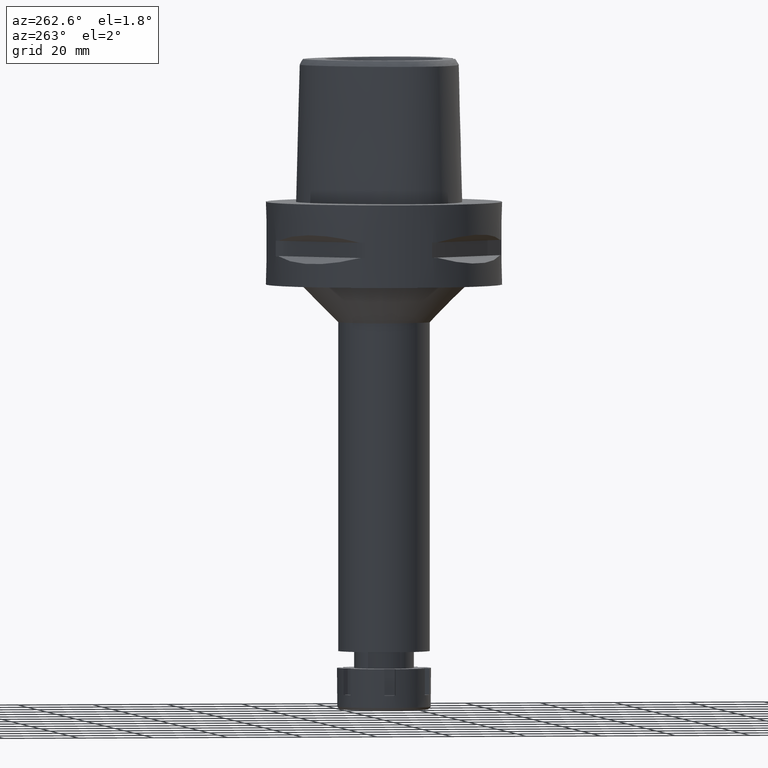
[diagram: clean part render]
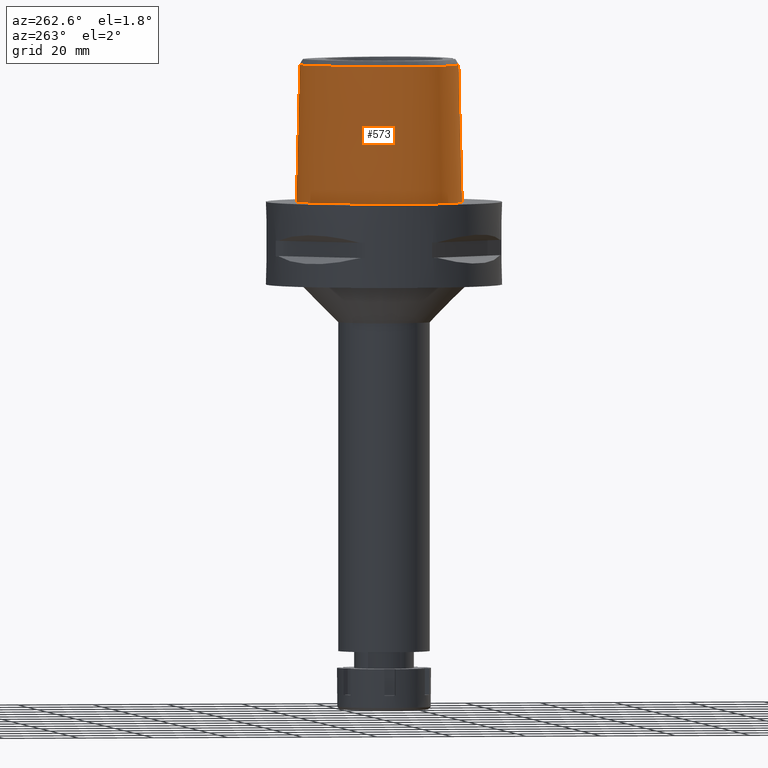
[diagram: same view with one face highlighted and labeled with its STEP entity id]
A machine part, auxiliary view. The second image highlights one B-rep face of the part: STEP entity #573.
In plain terms, the highlighted face is a freeform B-spline surface patch.
Its self-contained STEP definition (entity closure, byte-faithful):
#8 = CARTESIAN_POINT ( 'NONE',  ( -0.5047993661926269970, -20.38876923348000858, 11.45000000000000107 ) ) ;
#21 = CARTESIAN_POINT ( 'NONE',  ( 0.7234356453953000310, 23.47140593135999964, -0.7304378667426000282 ) ) ;
#27 = EDGE_CURVE ( 'NONE', #5125, #4345, #4020, .T. ) ;
#106 = CARTESIAN_POINT ( 'NONE',  ( -20.09084467977999822, -11.59945458355000092, 11.93048515679000054 ) ) ;
#128 = CARTESIAN_POINT ( 'NONE',  ( -3.671249123513567802, -19.60525173594972514, 34.94790829898666829 ) ) ;
#133 = CARTESIAN_POINT ( 'NONE',  ( -21.13154856346000088, -6.714587031163000042, 37.25233120387000696 ) ) ;
#159 = CARTESIAN_POINT ( 'NONE',  ( -4.987110641354000506, 22.24795274051000149, 11.93048515679000054 ) ) ;
#184 = CARTESIAN_POINT ( 'NONE',  ( -20.94844326293999970, -10.61175397189999892, -0.7304378667426000282 ) ) ;
#213 = CARTESIAN_POINT ( 'NONE',  ( -17.25769828425000085, 9.963736401376998231, 37.25233120387000696 ) ) ;
#244 = CARTESIAN_POINT ( 'NONE',  ( -20.09619618740880043, -10.23243843868059066, 36.52186244847992214 ) ) ;
#257 = CARTESIAN_POINT ( 'NONE',  ( -16.95889172186775085, -15.67838866670421361, 2.619346360361977932E-07 ) ) ;
#264 = CARTESIAN_POINT ( 'NONE',  ( -3.921269265871360155, -20.09311890564809033, 14.47775228273900261 ) ) ;
#291 = CARTESIAN_POINT ( 'NONE',  ( -2.467128207654215366, -20.12044499745017490, 18.71456023906640809 ) ) ;
#298 = CARTESIAN_POINT ( 'NONE',  ( -1.853278683591999876, -20.08023909589999789, 24.59140818032999931 ) ) ;
#303 = CARTESIAN_POINT ( 'NONE',  ( -21.07430010673133580, -0.4408303445192869874, 36.52186244847992214 ) ) ;
#310 = VECTOR ( 'NONE', #3848, 999.9999999999998863 ) ;
#320 = CARTESIAN_POINT ( 'NONE',  ( -3.520475118947736348, -20.16064927175107968, 13.49656734865833663 ) ) ;
#326 = CARTESIAN_POINT ( 'NONE',  ( -14.36818022375999959, -16.67825710941000139, 24.59140818032999931 ) ) ;
#329 = CARTESIAN_POINT ( 'NONE',  ( -4.467522189395712218, -19.48130287050408072, 36.52186244847992214 ) ) ;
#350 = CARTESIAN_POINT ( 'NONE',  ( -2.781497320433747866, -20.10345565782015242, 18.44409576488593316 ) ) ;
#368 = CARTESIAN_POINT ( 'NONE',  ( -0.8548392418397517956, 23.47499999345155075, 2.619351224693407064E-07 ) ) ;
#373 = CARTESIAN_POINT ( 'NONE',  ( -2.875757950341225389, -20.24102512592877545, 12.64823125461331266 ) ) ;
#391 = EDGE_CURVE ( 'NONE', #3148, #4595, #1599, .T. ) ;
#402 = CARTESIAN_POINT ( 'NONE',  ( -3.089131642920992515, -20.21685897408069010, 12.88004451868239286 ) ) ;
#430 = CARTESIAN_POINT ( 'NONE',  ( -3.215358272888209079, -20.20174660046934889, 13.03391498473856380 ) ) ;
#443 = CARTESIAN_POINT ( 'NONE',  ( 0.4696382016777999602, 23.16972797999000022, 11.93048515679000054 ) ) ;
#455 = CARTESIAN_POINT ( 'NONE',  ( -1.559921522259156923, -20.34641501698336796, 11.76246137009517767 ) ) ;
#530 = CARTESIAN_POINT ( 'NONE',  ( -19.40779763212000120, -12.64961923335000193, 11.93048515679000054 ) ) ;
#538 = VERTEX_POINT ( 'NONE', #4286 ) ;
#554 = CARTESIAN_POINT ( 'NONE',  ( -21.94536971692000193, -4.102220499650000463, 11.93048515679999966 ) ) ;
#573 = ADVANCED_FACE ( 'NONE', ( #4789 ), #2280, .T. ) ;
#584 = CARTESIAN_POINT ( 'NONE',  ( -16.77374378749999906, -15.44292467676000058, 11.93048515679000054 ) ) ;
#591 = CARTESIAN_POINT ( 'NONE',  ( -2.503154198992559198, -19.81241979315919011, 31.80000012753028571 ) ) ;
#603 = ORIENTED_EDGE ( 'NONE', *, *, #27, .T. ) ;
#613 = CARTESIAN_POINT ( 'NONE',  ( -20.46725037759000188, 4.555493625363999932, 11.93048515679999966 ) ) ;
#643 = CARTESIAN_POINT ( 'NONE',  ( -20.36546124918999823, -11.75800453441999949, -0.7304378667426000282 ) ) ;
#651 = VERTEX_POINT ( 'NONE', #4623 ) ;
#671 = CARTESIAN_POINT ( 'NONE',  ( -11.23887130413000079, -18.91049776456999965, -0.7304378667426000282 ) ) ;
#697 = CARTESIAN_POINT ( 'NONE',  ( -3.649474620161969884, -20.05281468735704564, 17.25706831816531306 ) ) ;
#698 = LINE ( 'NONE', #2423, #1025 ) ;
#704 = CARTESIAN_POINT ( 'NONE',  ( -14.52531259864000113, -16.95413742188999962, 11.93048515679000054 ) ) ;
#707 = CARTESIAN_POINT ( 'NONE',  ( -3.637738201363999835, -19.56971413236999879, 36.52186244848000030 ) ) ;
#724 = CARTESIAN_POINT ( 'NONE',  ( -3.736722311398999796, -19.67781602443999844, 31.80000000000000071 ) ) ;
#728 = CARTESIAN_POINT ( 'NONE',  ( -3.952964639633002708, -20.08622609015963079, 14.60890045225522016 ) ) ;
#734 = CARTESIAN_POINT ( 'NONE',  ( -1.886862292479999814, -20.71358860379999811, -0.7304378667426000282 ) ) ;
#743 = B_SPLINE_CURVE_WITH_KNOTS ( 'NONE', 3,
 ( #1061, #2784, #4498, #1981, #1538, #2010, #1957, #4643, #1227, #2919, #3291, #2896, #1115, #5392, #3320, #1623, #3704, #2504, #3735, #3789, #2473, #4166, #291, #3678, #5494, #350, #3265, #4974, #811, #3345, #2448, #2948, #2840, #5055, #2421, #697, #5474, #1649, #2529, #4562, #2043, #2069, #1193, #5003, #5448, #3371, #1594, #5412, #1564, #1146, #5082, #4670, #4241, #728, #264, #4140, #5032, #1171, #2870, #4590, #4615, #782, #4217, #753, #4190, #320, #3762, #2589, #5224, #4750, #4298, #3926, #430, #402, #833, #2124, #5527, #2153, #373, #3064, #1359, #2556, #3870, #3454, #1672, #5557, #1277, #4267, #2640, #3841, #455, #3813, #1754, #8, #1722 ),
 .UNSPECIFIED., .F., .F.,
 ( 4, 2, 2, 1, 1, 1, 2, 2, 2, 2, 1, 2, 2, 2, 1, 1, 1, 2, 2, 2, 2, 2, 1, 1, 2, 2, 2, 2, 1, 2, 2, 2, 2, 1, 1, 1, 2, 2, 2, 2, 1, 2, 2, 2, 1, 1, 1, 2, 2, 2, 2, 2, 1, 1, 2, 2, 4 ),
 ( 0.0000000000000000000, 0.06250000000000804912, 0.09375000000001200429, 0.1093750000000138778, 0.1171875000000148076, 0.1210937500000151545, 0.1230468750000154737, 0.1250000000000157929, 0.1562500000000184852, 0.1718750000000197897, 0.1796875000000204281, 0.1835937500000205391, 0.1875000000000206501, 0.2187500000000221767, 0.2343750000000228983, 0.2421875000000233147, 0.2460937500000237865, 0.2480468750000237310, 0.2500000000000236478, 0.3125000000000220379, 0.3437500000000212053, 0.3593750000000208722, 0.3671875000000206501, 0.3710937500000205391, 0.3730468750000200395, 0.3750000000000195954, 0.4375000000000068834, 0.4687500000000000555, 0.4843749999999967248, 0.4921874999999950040, 0.4999999999999932832, 0.5624999999999806821, 0.5937499999999746869, 0.6093749999999718003, 0.6171874999999703570, 0.6210937499999695799, 0.6230468749999692468, 0.6249999999999688027, 0.6562499999999672484, 0.6718749999999666933, 0.6796874999999662492, 0.6835937499999661382, 0.6874999999999659162, 0.7187499999999655831, 0.7343749999999654721, 0.7421874999999652500, 0.7460937499999651390, 0.7480468749999652500, 0.7499999999999652500, 0.8124999999999722444, 0.8437499999999760192, 0.8593749999999779066, 0.8671874999999789058, 0.8710937499999794609, 0.8730468749999797939, 0.8749999999999800160, 1.000000000000000000 ),
 .UNSPECIFIED. ) ;
#753 = CARTESIAN_POINT ( 'NONE',  ( -3.646271025386951692, -20.14180172674265634, 13.73229968810843360 ) ) ;
#761 = CARTESIAN_POINT ( 'NONE',  ( -6.232237555893999748, -19.68961163868999975, 24.59140818032999931 ) ) ;
#782 = CARTESIAN_POINT ( 'NONE',  ( -3.744859968352622026, -20.12555785049274704, 13.95773689203773493 ) ) ;
#804 = ORIENTED_EDGE ( 'NONE', *, *, #1432, .F. ) ;
#811 = CARTESIAN_POINT ( 'NONE',  ( -2.852856104024933170, -20.09931387729061569, 18.37467926461876999 ) ) ;
#833 = CARTESIAN_POINT ( 'NONE',  ( -3.024127618930171124, -20.22444760030266764, 12.80466032897661321 ) ) ;
#956 = CARTESIAN_POINT ( 'NONE',  ( -20.65947727138000189, -8.729764289773999764, 37.25233120387000696 ) ) ;
#959 = CARTESIAN_POINT ( 'NONE',  ( 2.041042029990999821E-08, -19.88004246002000031, 31.80000004972000127 ) ) ;
#985 = CARTESIAN_POINT ( 'NONE',  ( -20.65879042193000004, -10.48283616744000035, 11.93048515679000054 ) ) ;
#1008 = CARTESIAN_POINT ( 'NONE',  ( -14.42198652361999933, 15.65278600555999944, -0.7304378667426000282 ) ) ;
#1025 = VECTOR ( 'NONE', #3705, 1000.000000000000114 ) ;
#1037 = CARTESIAN_POINT ( 'NONE',  ( -2.373090257990999596, 22.37624318585000083, 37.25233120387000696 ) ) ;
#1061 = CARTESIAN_POINT ( 'NONE',  ( 0.0000000000000000000, -20.18628283968999781, 19.55000000000000071 ) ) ;
#1067 = CARTESIAN_POINT ( 'NONE',  ( -10.75753574117999989, 19.18839676111999992, -0.7304378667426000282 ) ) ;
#1091 = CARTESIAN_POINT ( 'NONE',  ( 0.6840430854466000854, -20.68668155454999891, -0.7304378667426000282 ) ) ;
#1094 = CARTESIAN_POINT ( 'NONE',  ( -21.14970188363666637, -6.717195958887917762, 36.52186244847992214 ) ) ;
#1112 = VERTEX_POINT ( 'NONE', #2704 ) ;
#1115 = CARTESIAN_POINT ( 'NONE',  ( -1.656252726927804675, -20.15609978928700130, 19.19765142506503608 ) ) ;
#1122 = CARTESIAN_POINT ( 'NONE',  ( 0.4520368072160999562, -20.37458452991999636, 11.93048515679000054 ) ) ;
#1146 = CARTESIAN_POINT ( 'NONE',  ( -4.049663826248573351, -20.05088590020230299, 15.56119206774690511 ) ) ;
#1152 = CARTESIAN_POINT ( 'NONE',  ( -1.836486879148000018, -19.76356434195000134, 37.25233120387000696 ) ) ;
#1155 = CARTESIAN_POINT ( 'NONE',  ( -1.721532760867000043E-11, 22.56201468012000078, 36.52186680743999858 ) ) ;
#1171 = CARTESIAN_POINT ( 'NONE',  ( -3.788010122577049277, -20.11815763408464974, 14.06624340820799546 ) ) ;
#1179 = CARTESIAN_POINT ( 'NONE',  ( -10.15538788053223129, 18.47129535094509123, 36.52186244847992214 ) ) ;
#1186 = CARTESIAN_POINT ( 'NONE',  ( -11.23259756502196005, -18.89324218131637068, 2.619346360361977932E-07 ) ) ;
#1193 = CARTESIAN_POINT ( 'NONE',  ( -3.848403410399270808, -20.04310851184510867, 16.79149714040345032 ) ) ;
#1221 = CARTESIAN_POINT ( 'NONE',  ( -7.571159431033696485, 21.31457030682647869, 2.619346360361977932E-07 ) ) ;
#1227 = CARTESIAN_POINT ( 'NONE',  ( -1.492522727688411210, -20.16161937968068685, 19.26502569008748011 ) ) ;
#1248 = CARTESIAN_POINT ( 'NONE',  ( -2.113823672675716914, -20.67499999345193373, 2.619346644252395981E-07 ) ) ;
#1269 = EDGE_CURVE ( 'NONE', #2715, #4595, #4556, .T. ) ;
#1277 = CARTESIAN_POINT ( 'NONE',  ( -1.678454493258324742, -20.33967188086215927, 11.81405957882952684 ) ) ;
#1359 = CARTESIAN_POINT ( 'NONE',  ( -2.647727988115372355, -20.26593689667616616, 12.42012271609376661 ) ) ;
#1376 = CARTESIAN_POINT ( 'NONE',  ( -7.259695359101000278, 20.78233551251999955, 24.59140818032999931 ) ) ;
#1403 = CARTESIAN_POINT ( 'NONE',  ( -17.53318565192000023, 10.12278922574999918, 24.59140818032999931 ) ) ;
#1430 = CARTESIAN_POINT ( 'NONE',  ( -17.80867301958000226, 10.28184205011999985, 11.93048515679000054 ) ) ;
#1432 = EDGE_CURVE ( 'NONE', #1112, #4345, #698, .T. ) ;
#1455 = CARTESIAN_POINT ( 'NONE',  ( -0.5821289162259000172, 22.88453074934999876, 24.59140818032999931 ) ) ;
#1470 = ORIENTED_EDGE ( 'NONE', *, *, #2760, .T. ) ;
#1489 = CARTESIAN_POINT ( 'NONE',  ( -21.26836735520999966, -8.910752227607000364, 11.93048515679000054 ) ) ;
#1538 = CARTESIAN_POINT ( 'NONE',  ( -1.025211814383784503, -20.17465818941732536, 19.42048404905371228 ) ) ;
#1564 = CARTESIAN_POINT ( 'NONE',  ( -4.048193638326265997, -20.04945813672258126, 15.62509932612173635 ) ) ;
#1585 = CARTESIAN_POINT ( 'NONE',  ( 4.563147168621999314E-11, 23.47499999999000053, 5.514107688971999147E-14 ) ) ;
#1594 = CARTESIAN_POINT ( 'NONE',  ( -4.038031914720692228, -20.04584209172335818, 15.81781984752944226 ) ) ;
#1599 = B_SPLINE_CURVE_WITH_KNOTS ( 'NONE', 3,
 ( #4458, #3253, #591, #1940 ),
 .UNSPECIFIED., .F., .F.,
 ( 4, 4 ),
 ( 0.0000000000000000000, 1.000000000000000000 ),
 .UNSPECIFIED. ) ;
#1605 = CARTESIAN_POINT ( 'NONE',  ( -7.300578999877068931, -19.07170748891847367, 36.52186244847992924 ) ) ;
#1623 = CARTESIAN_POINT ( 'NONE',  ( -2.004675599387941265, -20.14220382833399015, 19.01976680093504157 ) ) ;
#1644 = CARTESIAN_POINT ( 'NONE',  ( -10.74572890635932865, 19.17433593245471002, 2.619346360361977932E-07 ) ) ;
#1649 = CARTESIAN_POINT ( 'NONE',  ( -3.704467467891572774, -20.04996865237282222, 17.13733399074459030 ) ) ;
#1660 = CARTESIAN_POINT ( 'NONE',  ( -17.27359245833298829, 9.972912913898634102, 36.52186244847992214 ) ) ;
#1672 = CARTESIAN_POINT ( 'NONE',  ( -1.812541018728651698, -20.33144879143423367, 11.87771303033797388 ) ) ;
#1709 = CARTESIAN_POINT ( 'NONE',  ( 0.4823619559272999680, 23.48603818681999655, -0.7304378667426000282 ) ) ;
#1722 = CARTESIAN_POINT ( 'NONE',  ( -9.433993878921999819E-13, -20.38876923348000147, 11.44999999999999929 ) ) ;
#1749 = B_SPLINE_CURVE_WITH_KNOTS ( 'NONE', 3,
 ( #959, #3583, #5295, #2687 ),
 .UNSPECIFIED., .F., .F.,
 ( 4, 4 ),
 ( 0.0000000000000000000, 1.000000000000000000 ),
 .UNSPECIFIED. ) ;
#1754 = CARTESIAN_POINT ( 'NONE',  ( -1.035503055409048745, -20.37488775911208094, 11.54570873352037097 ) ) ;
#1822 = CARTESIAN_POINT ( 'NONE',  ( -2.568271206741000068, 23.31126238851000210, -0.7304378667426000282 ) ) ;
#1841 = CARTESIAN_POINT ( 'NONE',  ( -7.554102645100000769E-12, -20.67499999999999716, 5.806466418789999109E-14 ) ) ;
#1847 = CARTESIAN_POINT ( 'NONE',  ( -3.736722311398999796, -19.67781602443999844, 31.80000000000000071 ) ) ;
#1855 = CARTESIAN_POINT ( 'NONE',  ( -18.12052891677999966, -13.74516015676000080, 24.59140818032999931 ) ) ;
#1879 = CARTESIAN_POINT ( 'NONE',  ( -7.099337617387999622, 20.50831363529999862, 37.25233120387000696 ) ) ;
#1882 = B_SPLINE_CURVE_WITH_KNOTS ( 'NONE', 3,
 ( #707, #329, #1605, #4174, #2053, #2822, #4149, #2432, #2403, #244, #4117, #1094, #1965, #303, #3302, #1660, #3745, #1179, #4655, #2515, #4572, #5013, #1155 ),
 .UNSPECIFIED., .F., .F.,
 ( 4, 1, 1, 1, 1, 1, 1, 1, 1, 1, 1, 1, 1, 1, 1, 1, 1, 1, 1, 1, 4 ),
 ( 0.0000000000000000000, 0.03580973941723343545, 0.1234633994701930387, 0.1672902294965150638, 0.2111170595230475455, 0.2549438895495799162, 0.2768573045626883666, 0.2987707195759020662, 0.3206841345892208484, 0.3425975496024343814, 0.3864243796288616695, 0.4302512096552889020, 0.4740780396817161901, 0.5617316997346757379, 0.6493853597876353412, 0.7370390198404899174, 0.8246926798933443825, 0.8685195099198768087, 0.9123463399463145329, 0.9561731699727629152, 1.000000000000000000 ),
 .UNSPECIFIED. ) ;
#1883 = CARTESIAN_POINT ( 'NONE',  ( -3.637738201363999835, -19.56971413236999879, 36.52186244848000030 ) ) ;
#1901 = CARTESIAN_POINT ( 'NONE',  ( -21.99640702057999775, -0.2778990154077000119, -0.7304378667426000282 ) ) ;
#1918 = ORIENTED_EDGE ( 'NONE', *, *, #3458, .F. ) ;
#1940 = CARTESIAN_POINT ( 'NONE',  ( -3.736722311398999796, -19.67781602443999844, 31.80000000000000071 ) ) ;
#1957 = CARTESIAN_POINT ( 'NONE',  ( -1.320565687274587896, -20.16697761691573731, 19.32976498246028285 ) ) ;
#1965 = CARTESIAN_POINT ( 'NONE',  ( -21.32871527670295819, -4.105831244394031465, 36.52186244847993635 ) ) ;
#1981 = CARTESIAN_POINT ( 'NONE',  ( -0.8941136475783435511, -20.17742596329177474, 19.45229334933507204 ) ) ;
#2002 = CARTESIAN_POINT ( 'NONE',  ( -14.40795638455321814, 15.64093749575016012, 2.619351909850797799E-07 ) ) ;
#2010 = CARTESIAN_POINT ( 'NONE',  ( -1.222079501497006504, -20.16967619644332643, 19.36182732690497943 ) ) ;
#2019 = CARTESIAN_POINT ( 'NONE',  ( -16.57726026099999928, -15.19304451867999894, 24.59140818032999931 ) ) ;
#2043 = CARTESIAN_POINT ( 'NONE',  ( -3.738021026999632568, -20.04832921641927967, 17.05876513949563389 ) ) ;
#2050 = CARTESIAN_POINT ( 'NONE',  ( -14.21104784888999895, -16.40237679692999961, 37.25233120387000696 ) ) ;
#2053 = CARTESIAN_POINT ( 'NONE',  ( -14.22011356156272299, -16.41829364186454043, 36.52186244847992214 ) ) ;
#2064 = CARTESIAN_POINT ( 'NONE',  ( -20.74942740259727714, 4.657187497767338868, 2.619351909850797799E-07 ) ) ;
#2069 = CARTESIAN_POINT ( 'NONE',  ( -3.740129524201637690, -20.04822853724978415, 17.05370687140991137 ) ) ;
#2087 = CARTESIAN_POINT ( 'NONE',  ( -18.06826687956963795, 10.43171874671655885, 2.619346360361977932E-07 ) ) ;
#2108 = CARTESIAN_POINT ( 'NONE',  ( 0.6658292787358000009, 22.52368252663000092, 37.25233120387000696 ) ) ;
#2124 = CARTESIAN_POINT ( 'NONE',  ( -2.945118222697316934, -20.23335776654016271, 12.71958560101062652 ) ) ;
#2132 = LINE ( 'NONE', #3462, #310 ) ;
#2140 = CARTESIAN_POINT ( 'NONE',  ( 0.7042335231754000002, 23.15549812978000332, 11.93048515679000054 ) ) ;
#2153 = CARTESIAN_POINT ( 'NONE',  ( -2.887412005234944345, -20.23974548682597074, 12.66003157092543319 ) ) ;
#2167 = CARTESIAN_POINT ( 'NONE',  ( -0.6149727129407999149, 23.51889465396999768, -0.7304378667426000282 ) ) ;
#2252 = CARTESIAN_POINT ( 'NONE',  ( -21.05621879942999897, -0.4440252142100999944, 37.25233120387000696 ) ) ;
#2277 = CARTESIAN_POINT ( 'NONE',  ( -21.62788386376000105, -4.104079499278999954, 24.59140818032999931 ) ) ;
#2280 = B_SPLINE_SURFACE_WITH_KNOTS ( 'NONE', 3, 3, ( 
 ( #21, #2140, #3049, #2108 ),
 ( #1709, #443, #3831, #3439 ),
 ( #2167, #3413, #1455, #4423 ),
 ( #1822, #2762, #4079, #1037 ),
 ( #4505, #159, #2311, #4023 ),
 ( #4894, #3160, #1376, #1879 ),
 ( #1067, #3185, #3602, #5237 ),
 ( #1008, #5291, #4477, #4841 ),
 ( #4924, #1430, #1403, #213 ),
 ( #5314, #613, #3629, #2340 ),
 ( #1901, #5342, #3526, #2252 ),
 ( #3133, #554, #2277, #2793 ),
 ( #3991, #3105, #4051, #133 ),
 ( #4817, #1489, #3218, #956 ),
 ( #184, #985, #2683, #2730 ),
 ( #643, #106, #3966, #2364 ),
 ( #4397, #530, #3552, #5263 ),
 ( #2707, #4867, #1855, #4448 ),
 ( #3579, #584, #2019, #2902 ),
 ( #4171, #704, #326, #2050 ),
 ( #671, #5479, #4224, #3770 ),
 ( #4198, #4114, #761, #4596 ),
 ( #734, #3711, #298, #1152 ),
 ( #5371, #1122, #3269, #4954 ),
 ( #1091, #3656, #2819, #2878 ) ),
 .UNSPECIFIED., .F., .F., .F.,
 ( 4, 1, 1, 1, 1, 1, 1, 1, 1, 1, 1, 1, 1, 1, 1, 1, 1, 1, 1, 1, 1, 1, 4 ),
 ( 4, 4 ),
 ( -0.01173777939045999967, 0.0000000000000000000, 0.04166666666736999758, 0.08333333333399001175, 0.1250000000005999923, 0.1666666666673000119, 0.2500000000004999889, 0.3333333333337000215, 0.4166666666670000296, 0.5000000000002999823, 0.5416666666668999985, 0.5833333333335000148, 0.6250000000001000311, 0.6458333333333999837, 0.6666666666667999674, 0.6875000000001000311, 0.7083333333333000637, 0.7500000000000000000, 0.7916666666667000474, 0.8333333333332000326, 0.9166666666664999852, 1.000000000000000000, 1.008985696609000060 ),
 ( -3.533580594794000156E-09, 1.000000180213000078 ),
 .UNSPECIFIED. ) ;
#2294 = EDGE_LOOP ( 'NONE', ( #804, #1918, #5341, #4942, #3486, #1470, #3111, #603 ) ) ;
#2311 = CARTESIAN_POINT ( 'NONE',  ( -4.868968364858000442, 21.95285523424999852, 24.59140818032999931 ) ) ;
#2340 = CARTESIAN_POINT ( 'NONE',  ( -19.86834402563999902, 4.339653564911000849, 37.25233120387000696 ) ) ;
#2364 = CARTESIAN_POINT ( 'NONE',  ( -19.54161154095999819, -11.28235468179999934, 37.25233120387000696 ) ) ;
#2403 = CARTESIAN_POINT ( 'NONE',  ( -19.55745547455737210, -11.29150218116193116, 36.52186244847992214 ) ) ;
#2421 = CARTESIAN_POINT ( 'NONE',  ( -3.623054736483445115, -20.05423874947321750, 17.31100359226983088 ) ) ;
#2423 = CARTESIAN_POINT ( 'NONE',  ( -9.433993878921999819E-13, -20.38876923348000147, 11.44999999999999929 ) ) ;
#2432 = CARTESIAN_POINT ( 'NONE',  ( -18.90964971338141609, -12.28759719904615011, 36.52186244847992214 ) ) ;
#2448 = CARTESIAN_POINT ( 'NONE',  ( -3.081149392581320257, -20.08583124627751104, 18.14629112889923235 ) ) ;
#2473 = CARTESIAN_POINT ( 'NONE',  ( -2.236225399043144879, -20.13170464962382766, 18.87669531694537639 ) ) ;
#2504 = CARTESIAN_POINT ( 'NONE',  ( -2.141634863661368016, -20.13611892945429460, 18.93776449056523248 ) ) ;
#2515 = CARTESIAN_POINT ( 'NONE',  ( -4.757642277158861788, 21.67478330407438847, 36.52186244847992214 ) ) ;
#2525 = CARTESIAN_POINT ( 'NONE',  ( -5.098437014838742343, 22.52602538452507019, 2.619346360361977932E-07 ) ) ;
#2529 = CARTESIAN_POINT ( 'NONE',  ( -3.724287987559556701, -20.04899117660404073, 17.09139312267754107 ) ) ;
#2556 = CARTESIAN_POINT ( 'NONE',  ( -2.421503357404191092, -20.28648737493365317, 12.24279215502128615 ) ) ;
#2589 = CARTESIAN_POINT ( 'NONE',  ( -3.438474044888219616, -20.17226853620289262, 13.35950353148342806 ) ) ;
#2619 = EDGE_CURVE ( 'NONE', #3148, #538, #1749, .T. ) ;
#2640 = CARTESIAN_POINT ( 'NONE',  ( -1.592612062468855560, -20.34460894491094862, 11.77623291199367905 ) ) ;
#2683 = CARTESIAN_POINT ( 'NONE',  ( -20.36913758092999771, -10.35391836298000001, 24.59140818032999931 ) ) ;
#2687 = CARTESIAN_POINT ( 'NONE',  ( 0.0000000000000000000, -20.18628283968999781, 19.55000000000000071 ) ) ;
#2704 = CARTESIAN_POINT ( 'NONE',  ( -9.433993878921999819E-13, -20.38876923348000147, 11.44999999999999929 ) ) ;
#2707 = CARTESIAN_POINT ( 'NONE',  ( -18.58171406928000025, -14.18198046874000084, -0.7304378667426000282 ) ) ;
#2715 = VERTEX_POINT ( 'NONE', #1883 ) ;
#2730 = CARTESIAN_POINT ( 'NONE',  ( -20.07948473991999805, -10.22500055852000145, 37.25233120387000696 ) ) ;
#2760 = EDGE_CURVE ( 'NONE', #2715, #651, #1882, .T. ) ;
#2762 = CARTESIAN_POINT ( 'NONE',  ( -2.503210890491000207, 22.99958932096000197, 11.93048515679000054 ) ) ;
#2784 = CARTESIAN_POINT ( 'NONE',  ( -0.2473412322776362970, -20.18628283969000137, 19.54999999999999716 ) ) ;
#2793 = CARTESIAN_POINT ( 'NONE',  ( -21.31039801061000105, -4.105938498908000334, 37.25233120387000696 ) ) ;
#2819 = CARTESIAN_POINT ( 'NONE',  ( 0.6718639802293999708, -20.05378874207000095, 24.59140818032999931 ) ) ;
#2822 = CARTESIAN_POINT ( 'NONE',  ( -16.39211280191553044, -14.95758113319470084, 36.52186244847992214 ) ) ;
#2840 = CARTESIAN_POINT ( 'NONE',  ( -3.474550157063431843, -20.06258684786148194, 17.58509941784211605 ) ) ;
#2863 = CARTESIAN_POINT ( 'NONE',  ( 4.563147168621999314E-11, 23.47499999999000053, 5.514107688971999147E-14 ) ) ;
#2870 = CARTESIAN_POINT ( 'NONE',  ( -3.765489374949922308, -20.12204791086962885, 14.00864527312732299 ) ) ;
#2878 = CARTESIAN_POINT ( 'NONE',  ( 0.6657744276207999690, -19.73734233584000108, 37.25233120387000696 ) ) ;
#2889 = CARTESIAN_POINT ( 'NONE',  ( -19.64947365333437190, -12.82525390239508845, 2.619346360361977932E-07 ) ) ;
#2896 = CARTESIAN_POINT ( 'NONE',  ( -1.543048130379650384, -20.15993798682084304, 19.24453660913642139 ) ) ;
#2902 = CARTESIAN_POINT ( 'NONE',  ( -16.38077673448999860, -14.94316436059999909, 37.25233120387000696 ) ) ;
#2919 = CARTESIAN_POINT ( 'NONE',  ( -1.517038990532515674, -20.16080850842839212, 19.25515252244225550 ) ) ;
#2941 = CARTESIAN_POINT ( 'NONE',  ( -21.97832647138169904, -0.2810937511456854665, 2.619346360361977932E-07 ) ) ;
#2948 = CARTESIAN_POINT ( 'NONE',  ( -3.258446753586563105, -20.07522384658320291, 17.91983021284166711 ) ) ;
#3049 = CARTESIAN_POINT ( 'NONE',  ( 0.6850314009556000006, 22.83959032821000079, 24.59140818032999931 ) ) ;
#3064 = CARTESIAN_POINT ( 'NONE',  ( -2.870809693610169244, -20.24156730632855528, 12.64324605246983957 ) ) ;
#3096 = CARTESIAN_POINT ( 'NONE',  ( -3.704239276368590961, -19.64128040965313460, 33.37395414949332917 ) ) ;
#3105 = CARTESIAN_POINT ( 'NONE',  ( -21.76083705166000115, -6.805026034490000875, 11.93048515679000054 ) ) ;
#3108 = EDGE_CURVE ( 'NONE', #651, #5125, #2132, .T. ) ;
#3111 = ORIENTED_EDGE ( 'NONE', *, *, #3108, .T. ) ;
#3133 = CARTESIAN_POINT ( 'NONE',  ( -22.26285557008000282, -4.100361500021000083, -0.7304378667426000282 ) ) ;
#3148 = VERTEX_POINT ( 'NONE', #5141 ) ;
#3160 = CARTESIAN_POINT ( 'NONE',  ( -7.420053100814000047, 21.05635738974000049, 11.93048515679000054 ) ) ;
#3185 = CARTESIAN_POINT ( 'NONE',  ( -10.55288401100999884, 18.94467581832000036, 11.93048515679000054 ) ) ;
#3218 = CARTESIAN_POINT ( 'NONE',  ( -20.96392231329000211, -8.820258258690001796, 24.59140818032999931 ) ) ;
#3253 = CARTESIAN_POINT ( 'NONE',  ( -1.251533273949709590, -19.88005341379600210, 31.80000012753018979 ) ) ;
#3265 = CARTESIAN_POINT ( 'NONE',  ( -2.823299992936002756, -20.10104229143709276, 18.40378355436402202 ) ) ;
#3269 = CARTESIAN_POINT ( 'NONE',  ( 0.4479792473616999726, -20.05810137037000018, 24.59140818032999931 ) ) ;
#3291 = CARTESIAN_POINT ( 'NONE',  ( -1.533377486154582581, -20.16026360294686626, 19.24851053760752961 ) ) ;
#3302 = CARTESIAN_POINT ( 'NONE',  ( -19.88562090097909518, 4.345879983791755663, 36.52186244847993635 ) ) ;
#3312 = CARTESIAN_POINT ( 'NONE',  ( -21.55524825379765730, -8.996025388752761032, 2.619346360361977932E-07 ) ) ;
#3320 = CARTESIAN_POINT ( 'NONE',  ( -1.944872162930868287, -20.14473830020673617, 19.05307826098890445 ) ) ;
#3345 = CARTESIAN_POINT ( 'NONE',  ( -2.857836109605272679, -20.09902107152586481, 18.36973246307367447 ) ) ;
#3371 = CARTESIAN_POINT ( 'NONE',  ( -4.019649019913691390, -20.04316019033999652, 16.01163126942446269 ) ) ;
#3394 = CARTESIAN_POINT ( 'NONE',  ( -22.24453907198324742, -4.100468750038055887, 2.619351909850797799E-07 ) ) ;
#3413 = CARTESIAN_POINT ( 'NONE',  ( -0.5985508145832999505, 23.20171270165999644, 11.93048515679999966 ) ) ;
#3439 = CARTESIAN_POINT ( 'NONE',  ( 0.4441906931785999935, 22.53710756634000134, 37.25233120387000696 ) ) ;
#3454 = CARTESIAN_POINT ( 'NONE',  ( -1.975954942208675513, -20.32065689222412175, 11.96260358356744469 ) ) ;
#3458 = EDGE_CURVE ( 'NONE', #538, #1112, #743, .T. ) ;
#3462 = CARTESIAN_POINT ( 'NONE',  ( -1.721532760867000043E-11, 22.56201468012000078, 36.52186680743999858 ) ) ;
#3486 = ORIENTED_EDGE ( 'NONE', *, *, #1269, .F. ) ;
#3526 = CARTESIAN_POINT ( 'NONE',  ( -21.36961487314000152, -0.3886498146093000372, 24.59140818032999931 ) ) ;
#3552 = CARTESIAN_POINT ( 'NONE',  ( -19.15132511418999783, -12.46323141721999939, 24.59140818032999931 ) ) ;
#3579 = CARTESIAN_POINT ( 'NONE',  ( -16.97022731399999884, -15.69280483484000044, -0.7304378667426000282 ) ) ;
#3583 = CARTESIAN_POINT ( 'NONE',  ( 6.820942348331112807E-09, -19.98212988583188476, 27.71666688228308217 ) ) ;
#3602 = CARTESIAN_POINT ( 'NONE',  ( -10.34823228082999869, 18.70095487552000080, 24.59140818032999931 ) ) ;
#3629 = CARTESIAN_POINT ( 'NONE',  ( -20.16779720162000089, 4.447573595138000435, 24.59140818032999931 ) ) ;
#3656 = CARTESIAN_POINT ( 'NONE',  ( 0.6779535328379999726, -20.37023514831000170, 11.93048515679000054 ) ) ;
#3678 = CARTESIAN_POINT ( 'NONE',  ( -2.621021505587179057, -20.11233874864636206, 18.58822781674976454 ) ) ;
#3704 = CARTESIAN_POINT ( 'NONE',  ( -2.095753548412726097, -20.13818364214429835, 18.96577014705994912 ) ) ;
#3705 = DIRECTION ( 'NONE',  ( -5.771736818903829525E-13, -0.02499051295389925070, -0.9996876883618708298 ) ) ;
#3711 = CARTESIAN_POINT ( 'NONE',  ( -1.870070488035999956, -20.39691384984999800, 11.93048515679000054 ) ) ;
#3735 = CARTESIAN_POINT ( 'NONE',  ( -2.187955111050584378, -20.13397228737159139, 18.90818030783799841 ) ) ;
#3745 = CARTESIAN_POINT ( 'NONE',  ( -13.70645028110978814, 15.04851272300822806, 36.52186244847993635 ) ) ;
#3762 = CARTESIAN_POINT ( 'NONE',  ( -3.466483550187511753, -20.16833646136333869, 13.40542637771374501 ) ) ;
#3770 = CARTESIAN_POINT ( 'NONE',  ( -10.91263698749000000, -18.01320775713999822, 37.25233120387000696 ) ) ;
#3789 = CARTESIAN_POINT ( 'NONE',  ( -2.218923952808330657, -20.13252298611807234, 18.88809933006110953 ) ) ;
#3807 = CARTESIAN_POINT ( 'NONE',  ( -20.34961797988879795, -11.74885741858964217, 2.619346360361977932E-07 ) ) ;
#3813 = CARTESIAN_POINT ( 'NONE',  ( -1.554881956804919030, -20.34669101430225524, 11.76035872671677573 ) ) ;
#3831 = CARTESIAN_POINT ( 'NONE',  ( 0.4569144474282000323, 22.85341777317000123, 24.59140818032999931 ) ) ;
#3841 = CARTESIAN_POINT ( 'NONE',  ( -1.572984596533692381, -20.34569619827900055, 11.76794029727472690 ) ) ;
#3848 = DIRECTION ( 'NONE',  ( 1.720261777398959079E-12, 0.02499051290962944413, -0.9996876883629776112 ) ) ;
#3870 = CARTESIAN_POINT ( 'NONE',  ( -2.086814383365040104, -20.31269213283688657, 12.02647857452866198 ) ) ;
#3926 = CARTESIAN_POINT ( 'NONE',  ( -3.294464282139351052, -20.19175818983858051, 13.14063372506664606 ) ) ;
#3966 = CARTESIAN_POINT ( 'NONE',  ( -19.81622811036999821, -11.44090463266999969, 24.59140818032999931 ) ) ;
#3985 = CARTESIAN_POINT ( 'NONE',  ( -3.637738201363999835, -19.56971413236999879, 36.52186244848000030 ) ) ;
#3991 = CARTESIAN_POINT ( 'NONE',  ( -22.07548129577000040, -6.850245536153000359, -0.7304378667426000282 ) ) ;
#4020 = B_SPLINE_CURVE_WITH_KNOTS ( 'NONE', 3,
 ( #2863, #368, #5466, #2525, #1221, #1644, #2002, #2087, #2064, #2941, #3394, #5100, #3312, #4160, #3807, #2889, #5439, #257, #5519, #1186, #4666, #1248, #4182 ),
 .UNSPECIFIED., .F., .F.,
 ( 4, 1, 1, 1, 1, 1, 1, 1, 1, 1, 1, 1, 1, 1, 1, 1, 1, 1, 1, 1, 4 ),
 ( 0.0000000000000000000, 0.04166666666736999758, 0.08333333333399001175, 0.1250000000005999923, 0.1666666666673000119, 0.2500000000004999889, 0.3333333333337000215, 0.4166666666670000296, 0.5000000000002999823, 0.5416666666668999985, 0.5833333333335000148, 0.6250000000001000311, 0.6458333333333999837, 0.6666666666667999674, 0.6875000000001000311, 0.7083333333333000637, 0.7500000000000000000, 0.7916666666667000474, 0.8333333333332000326, 0.9166666666664999852, 1.000000000000000000 ),
 .UNSPECIFIED. ) ;
#4023 = CARTESIAN_POINT ( 'NONE',  ( -4.750826088362000377, 21.65775772799999999, 37.25233120387000696 ) ) ;
#4051 = CARTESIAN_POINT ( 'NONE',  ( -21.44619280755999924, -6.759806532825999525, 24.59140818032999931 ) ) ;
#4079 = CARTESIAN_POINT ( 'NONE',  ( -2.438150574240999902, 22.68791625340000095, 24.59140818032999931 ) ) ;
#4114 = CARTESIAN_POINT ( 'NONE',  ( -6.288476566710999194, -20.00290564649999681, 11.93048515679999966 ) ) ;
#4117 = CARTESIAN_POINT ( 'NONE',  ( -20.67704215116288324, -8.734985316449661141, 36.52186244847992214 ) ) ;
#4140 = CARTESIAN_POINT ( 'NONE',  ( -3.862607746689351362, -20.10460055501470933, 14.28038032241867761 ) ) ;
#4149 = CARTESIAN_POINT ( 'NONE',  ( -17.90324032096351914, -13.53935111955362913, 36.52186244847992214 ) ) ;
#4160 = CARTESIAN_POINT ( 'NONE',  ( -20.93173251612003938, -10.60431640359096761, 2.619346360361977932E-07 ) ) ;
#4166 = CARTESIAN_POINT ( 'NONE',  ( -2.360389010909422325, -20.12578017861218171, 18.79373387522312555 ) ) ;
#4171 = CARTESIAN_POINT ( 'NONE',  ( -14.68244497352000089, -17.23001773437000139, -0.7304378667426000282 ) ) ;
#4174 = CARTESIAN_POINT ( 'NONE',  ( -10.91891098965112761, -18.03046406390704348, 36.52186244847992214 ) ) ;
#4182 = CARTESIAN_POINT ( 'NONE',  ( -7.554102645100000769E-12, -20.67499999999999716, 5.806466418789999109E-14 ) ) ;
#4190 = CARTESIAN_POINT ( 'NONE',  ( -3.553766164807453887, -20.15576042543209923, 13.55638603583962443 ) ) ;
#4198 = CARTESIAN_POINT ( 'NONE',  ( -6.344715577528000416, -20.31619965430000008, -0.7304378667426000282 ) ) ;
#4217 = CARTESIAN_POINT ( 'NONE',  ( -3.698122373793030437, -20.13343971463974214, 13.84482020408101377 ) ) ;
#4224 = CARTESIAN_POINT ( 'NONE',  ( -11.02138175969999878, -18.31230442628000077, 24.59140818032999931 ) ) ;
#4241 = CARTESIAN_POINT ( 'NONE',  ( -4.027530768677415551, -20.06783249596207597, 14.99855479653706958 ) ) ;
#4267 = CARTESIAN_POINT ( 'NONE',  ( -1.638635025844401127, -20.34200884320507186, 11.79610711465622508 ) ) ;
#4286 = CARTESIAN_POINT ( 'NONE',  ( 0.0000000000000000000, -20.18628283968999781, 19.55000000000000071 ) ) ;
#4298 = CARTESIAN_POINT ( 'NONE',  ( -3.377353639916971240, -20.18061854612786732, 13.26476903757087200 ) ) ;
#4345 = VERTEX_POINT ( 'NONE', #1841 ) ;
#4397 = CARTESIAN_POINT ( 'NONE',  ( -19.66427015006000190, -12.83600704949000004, -0.7304378667426000282 ) ) ;
#4423 = CARTESIAN_POINT ( 'NONE',  ( -0.5657070178683999417, 22.56734879703000018, 37.25233120387000696 ) ) ;
#4448 = CARTESIAN_POINT ( 'NONE',  ( -17.88993634052999937, -13.52675000077999989, 37.25233120387000696 ) ) ;
#4458 = CARTESIAN_POINT ( 'NONE',  ( 2.041042029990999821E-08, -19.88004246002000031, 31.80000004972000127 ) ) ;
#4477 = CARTESIAN_POINT ( 'NONE',  ( -13.93560854372000080, 15.24203781277999958, 24.59140818032999931 ) ) ;
#4498 = CARTESIAN_POINT ( 'NONE',  ( -0.5036866637238501809, -20.18406862059044471, 19.52728785669996725 ) ) ;
#4505 = CARTESIAN_POINT ( 'NONE',  ( -5.105252917850000571, 22.54305024676000002, -0.7304378667426000282 ) ) ;
#4556 = B_SPLINE_CURVE_WITH_KNOTS ( 'NONE', 3,
 ( #3985, #128, #3096, #1847 ),
 .UNSPECIFIED., .F., .F.,
 ( 4, 4 ),
 ( 0.0000000000000000000, 1.000000000000000000 ),
 .UNSPECIFIED. ) ;
#4562 = CARTESIAN_POINT ( 'NONE',  ( -3.732557508995415052, -20.04859144260191783, 17.07180291399404837 ) ) ;
#4572 = CARTESIAN_POINT ( 'NONE',  ( -2.376843896516486421, 22.39422508474160267, 36.52186244847991503 ) ) ;
#4590 = CARTESIAN_POINT ( 'NONE',  ( -3.755562140673115668, -20.12374194796141680, 13.98397501487587746 ) ) ;
#4595 = VERTEX_POINT ( 'NONE', #724 ) ;
#4596 = CARTESIAN_POINT ( 'NONE',  ( -6.175998545076999413, -19.37631763089000003, 37.25233120387000696 ) ) ;
#4615 = CARTESIAN_POINT ( 'NONE',  ( -3.748882549353760751, -20.12487725615873302, 13.96753193210146371 ) ) ;
#4623 = CARTESIAN_POINT ( 'NONE',  ( -1.721532760867000043E-11, 22.56201468012000078, 36.52186680743999858 ) ) ;
#4643 = CARTESIAN_POINT ( 'NONE',  ( -1.435263460292240500, -20.16346600381252330, 19.28743623777306482 ) ) ;
#4655 = CARTESIAN_POINT ( 'NONE',  ( -7.108589416785917159, 20.52412325828170481, 36.52186244847992214 ) ) ;
#4666 = CARTESIAN_POINT ( 'NONE',  ( -6.341471018048058461, -20.29812499352228983, 2.619351909850797799E-07 ) ) ;
#4670 = CARTESIAN_POINT ( 'NONE',  ( -4.049848995936168095, -20.05861656952082228, 15.25314035233473575 ) ) ;
#4750 = CARTESIAN_POINT ( 'NONE',  ( -3.388781880797234081, -20.17907268769692664, 13.28211842279118571 ) ) ;
#4789 = FACE_OUTER_BOUND ( 'NONE', #2294, .T. ) ;
#4817 = CARTESIAN_POINT ( 'NONE',  ( -21.57281239713000076, -9.001246196523998933, -0.7304378667426000282 ) ) ;
#4841 = CARTESIAN_POINT ( 'NONE',  ( -13.69241955376999975, 15.03666371639999966, 37.25233120387000696 ) ) ;
#4867 = CARTESIAN_POINT ( 'NONE',  ( -18.35112149302999995, -13.96357031274999905, 11.93048515679000054 ) ) ;
#4894 = CARTESIAN_POINT ( 'NONE',  ( -7.580410842527000703, 21.33037926695000053, -0.7304378667426000282 ) ) ;
#4924 = CARTESIAN_POINT ( 'NONE',  ( -18.08416038724999808, 10.44089487449000053, -0.7304378667426000282 ) ) ;
#4942 = ORIENTED_EDGE ( 'NONE', *, *, #391, .T. ) ;
#4954 = CARTESIAN_POINT ( 'NONE',  ( 0.4439216875072000690, -19.74161821080999957, 37.25233120387000696 ) ) ;
#4974 = CARTESIAN_POINT ( 'NONE',  ( -2.841055161951131058, -20.10000556631501212, 18.38634273631048188 ) ) ;
#5003 = CARTESIAN_POINT ( 'NONE',  ( -3.925407708632547177, -20.04099055260236284, 16.53138977182224778 ) ) ;
#5013 = CARTESIAN_POINT ( 'NONE',  ( -0.7901461696973892668, 22.56201478746393363, 36.52186244847993635 ) ) ;
#5032 = CARTESIAN_POINT ( 'NONE',  ( -3.830499027157552305, -20.11062698623148748, 14.18153512544096451 ) ) ;
#5055 = CARTESIAN_POINT ( 'NONE',  ( -3.538328569009166813, -20.05892019842419316, 17.47427695038233608 ) ) ;
#5082 = CARTESIAN_POINT ( 'NONE',  ( -4.050018014422889223, -20.05167593067614717, 15.52805627100565999 ) ) ;
#5100 = CARTESIAN_POINT ( 'NONE',  ( -22.05732873671569649, -6.847636717813841756, 2.619346360361977932E-07 ) ) ;
#5125 = VERTEX_POINT ( 'NONE', #1585 ) ;
#5141 = CARTESIAN_POINT ( 'NONE',  ( 2.041042029990999821E-08, -19.88004246002000031, 31.80000004972000127 ) ) ;
#5224 = CARTESIAN_POINT ( 'NONE',  ( -3.408875187706379428, -20.17633333109261429, 13.31312751154035290 ) ) ;
#5237 = CARTESIAN_POINT ( 'NONE',  ( -10.14358055065999942, 18.45723393272000123, 37.25233120387000696 ) ) ;
#5263 = CARTESIAN_POINT ( 'NONE',  ( -18.89485259625000069, -12.27684360108000128, 37.25233120387000696 ) ) ;
#5291 = CARTESIAN_POINT ( 'NONE',  ( -14.17879753367000006, 15.44741190916999862, 11.93048515679999966 ) ) ;
#5295 = CARTESIAN_POINT ( 'NONE',  ( 6.840919770287218200E-09, -20.08420636276108340, 23.63333344114144552 ) ) ;
#5314 = CARTESIAN_POINT ( 'NONE',  ( -20.76670355355999931, 4.663413655589999429, -0.7304378667426000282 ) ) ;
#5341 = ORIENTED_EDGE ( 'NONE', *, *, #2619, .F. ) ;
#5342 = CARTESIAN_POINT ( 'NONE',  ( -21.68301094685999786, -0.3332744150085000245, 11.93048515679000054 ) ) ;
#5371 = CARTESIAN_POINT ( 'NONE',  ( 0.4560943670704999398, -20.69106768947000319, -0.7304378667426000282 ) ) ;
#5392 = CARTESIAN_POINT ( 'NONE',  ( -1.768917262170793814, -20.15190475906381451, 19.14568281053294285 ) ) ;
#5412 = CARTESIAN_POINT ( 'NONE',  ( -4.044848056823933113, -20.04744994059100094, 15.72117637690397984 ) ) ;
#5439 = CARTESIAN_POINT ( 'NONE',  ( -18.56841064664882524, -14.16937987829893331, 2.619346360361977932E-07 ) ) ;
#5448 = CARTESIAN_POINT ( 'NONE',  ( -4.001055636211795274, -20.04208398455366336, 16.14154222857165166 ) ) ;
#5466 = CARTESIAN_POINT ( 'NONE',  ( -2.564517725611348720, 23.29328124354946183, 2.619346360361977932E-07 ) ) ;
#5474 = CARTESIAN_POINT ( 'NONE',  ( -3.686560471766107128, -20.05088322548402502, 17.17709135335207904 ) ) ;
#5479 = CARTESIAN_POINT ( 'NONE',  ( -11.13012653192000023, -18.61140109543000065, 11.93048515679000054 ) ) ;
#5494 = CARTESIAN_POINT ( 'NONE',  ( -2.696415149898497621, -20.10825975497923324, 18.52316981035199461 ) ) ;
#5519 = CARTESIAN_POINT ( 'NONE',  ( -14.67337964094917169, -17.21410155678861997, 2.619346360361977932E-07 ) ) ;
#5527 = CARTESIAN_POINT ( 'NONE',  ( -2.904838724128874450, -20.23782704190353599, 12.67778573503155037 ) ) ;
#5557 = CARTESIAN_POINT ( 'NONE',  ( -1.758544761686390956, -20.33485355119248084, 11.85123508313085416 ) ) ;